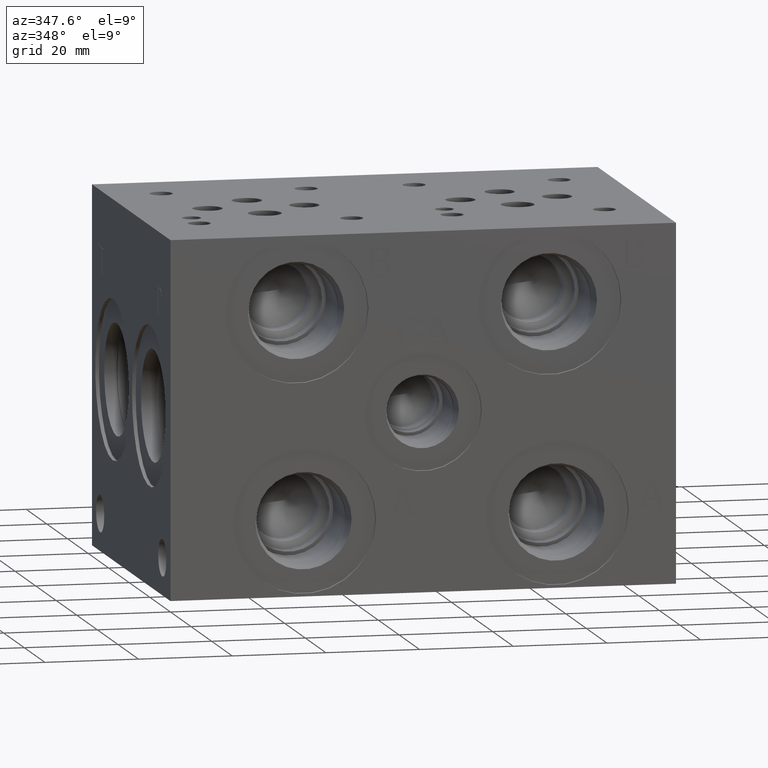
[diagram: clean part render]
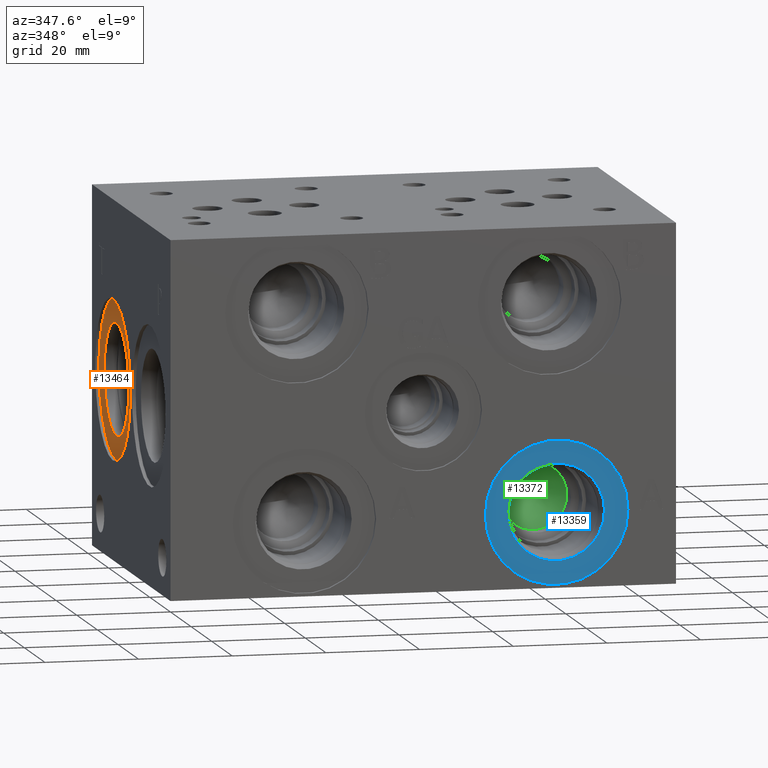
[diagram: same view with three faces highlighted in distinct colors, each labeled with its STEP entity id]
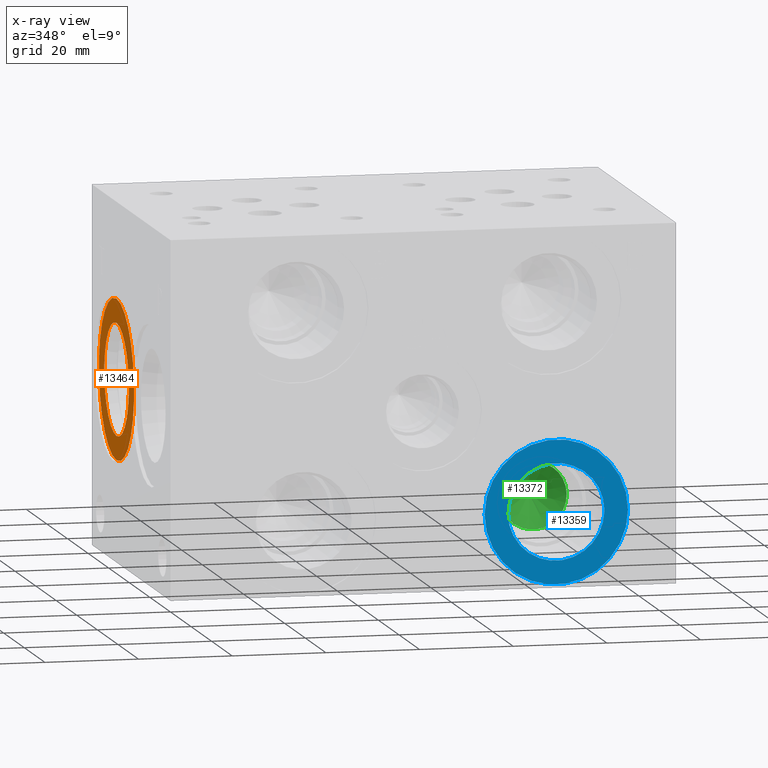
[diagram: x-ray of the same camera — body ghosted, the three highlighted faces saturated]
A machine part, auxiliary view with three faces highlighted in distinct colors.
The next image is the same camera in x-ray (body ghosted, the three faces saturated) — at least one of them is partly hidden behind the body in this view.
Their STEP definitions:

[orange] entity #13464 — the highlighted planar face has unit normal (1, 0, 0).
#481=CIRCLE('',#14304,17.0688);
#482=CIRCLE('',#14305,17.0688);
#483=CIRCLE('',#14307,11.9507);
#484=CIRCLE('',#14308,11.9507);
#580=FACE_BOUND('',#2638,.T.);
#1848=FACE_OUTER_BOUND('',#2637,.T.);
#2637=EDGE_LOOP('',(#11834,#11835));
#2638=EDGE_LOOP('',(#11836,#11837));
#6297=VERTEX_POINT('',#23428);
#6298=VERTEX_POINT('',#23430);
#6299=VERTEX_POINT('',#23434);
#6300=VERTEX_POINT('',#23435);
#8167=EDGE_CURVE('',#6297,#6298,#481,.T.);
#8168=EDGE_CURVE('',#6298,#6297,#482,.T.);
#8169=EDGE_CURVE('',#6299,#6300,#483,.T.);
#8170=EDGE_CURVE('',#6300,#6299,#484,.T.);
#11834=ORIENTED_EDGE('',*,*,#8168,.F.);
#11835=ORIENTED_EDGE('',*,*,#8167,.F.);
#11836=ORIENTED_EDGE('',*,*,#8169,.T.);
#11837=ORIENTED_EDGE('',*,*,#8170,.T.);
#12276=PLANE('',#14306);
#13464=ADVANCED_FACE('',(#1848,#580),#12276,.F.);
#14304=AXIS2_PLACEMENT_3D('',#23431,#17129,#17130);
#14305=AXIS2_PLACEMENT_3D('',#23432,#17131,#17132);
#14306=AXIS2_PLACEMENT_3D('',#23433,#17133,#17134);
#14307=AXIS2_PLACEMENT_3D('',#23436,#17135,#17136);
#14308=AXIS2_PLACEMENT_3D('',#23437,#17137,#17138);
#17129=DIRECTION('center_axis',(1.,0.,0.));
#17130=DIRECTION('ref_axis',(0.,0.,-1.));
#17131=DIRECTION('center_axis',(1.,0.,0.));
#17132=DIRECTION('ref_axis',(0.,0.,-1.));
#17133=DIRECTION('center_axis',(1.,0.,0.));
#17134=DIRECTION('ref_axis',(0.,0.,-1.));
#17135=DIRECTION('center_axis',(1.,0.,0.));
#17136=DIRECTION('ref_axis',(0.,0.,-1.));
#17137=DIRECTION('center_axis',(1.,0.,0.));
#17138=DIRECTION('ref_axis',(0.,0.,-1.));
#23428=CARTESIAN_POINT('',(0.7874,55.9562,21.0312));
#23430=CARTESIAN_POINT('',(0.7874,55.9562,55.1688));
#23431=CARTESIAN_POINT('Origin',(0.7874,55.9562,38.1));
#23432=CARTESIAN_POINT('Origin',(0.7874,55.9562,38.1));
#23433=CARTESIAN_POINT('Origin',(0.7874,55.9562,50.0507));
#23434=CARTESIAN_POINT('',(0.7874,55.9562,50.0507));
#23435=CARTESIAN_POINT('',(0.787399999999999,55.9562,26.1493));
#23436=CARTESIAN_POINT('Origin',(0.7874,55.9562,38.1));
#23437=CARTESIAN_POINT('Origin',(0.7874,55.9562,38.1));

[blue] entity #13359 — the highlighted planar face has unit normal (0, 1, 0).
#329=CIRCLE('',#14047,15.3162);
#330=CIRCLE('',#14048,15.3162);
#331=CIRCLE('',#14050,10.2997);
#332=CIRCLE('',#14051,10.2997);
#561=FACE_BOUND('',#2514,.T.);
#1743=FACE_OUTER_BOUND('',#2513,.T.);
#2513=EDGE_LOOP('',(#11338,#11339));
#2514=EDGE_LOOP('',(#11340,#11341));
#6133=VERTEX_POINT('',#22921);
#6134=VERTEX_POINT('',#22923);
#6135=VERTEX_POINT('',#22927);
#6136=VERTEX_POINT('',#22928);
#7929=EDGE_CURVE('',#6133,#6134,#329,.T.);
#7930=EDGE_CURVE('',#6134,#6133,#330,.T.);
#7931=EDGE_CURVE('',#6135,#6136,#331,.T.);
#7932=EDGE_CURVE('',#6136,#6135,#332,.T.);
#11338=ORIENTED_EDGE('',*,*,#7930,.F.);
#11339=ORIENTED_EDGE('',*,*,#7929,.F.);
#11340=ORIENTED_EDGE('',*,*,#7931,.T.);
#11341=ORIENTED_EDGE('',*,*,#7932,.T.);
#12257=PLANE('',#14049);
#13359=ADVANCED_FACE('',(#1743,#561),#12257,.F.);
#14047=AXIS2_PLACEMENT_3D('',#22924,#16529,#16530);
#14048=AXIS2_PLACEMENT_3D('',#22925,#16531,#16532);
#14049=AXIS2_PLACEMENT_3D('',#22926,#16533,#16534);
#14050=AXIS2_PLACEMENT_3D('',#22929,#16535,#16536);
#14051=AXIS2_PLACEMENT_3D('',#22930,#16537,#16538);
#16529=DIRECTION('center_axis',(0.,1.,0.));
#16530=DIRECTION('ref_axis',(1.,0.,0.));
#16531=DIRECTION('center_axis',(0.,1.,0.));
#16532=DIRECTION('ref_axis',(1.,0.,0.));
#16533=DIRECTION('center_axis',(0.,1.,0.));
#16534=DIRECTION('ref_axis',(0.,0.,1.));
#16535=DIRECTION('center_axis',(0.,1.,0.));
#16536=DIRECTION('ref_axis',(1.,0.,0.));
#16537=DIRECTION('center_axis',(0.,1.,0.));
#16538=DIRECTION('ref_axis',(1.,0.,0.));
#22921=CARTESIAN_POINT('',(67.2338,0.7874,15.875));
#22923=CARTESIAN_POINT('',(97.8662,0.7874,15.875));
#22924=CARTESIAN_POINT('Origin',(82.55,0.7874,15.875));
#22925=CARTESIAN_POINT('Origin',(82.55,0.7874,15.875));
#22926=CARTESIAN_POINT('Origin',(92.8497,0.7874,15.875));
#22927=CARTESIAN_POINT('',(92.8497,0.7874,15.875));
#22928=CARTESIAN_POINT('',(72.2503,0.7874,15.875));
#22929=CARTESIAN_POINT('Origin',(82.55,0.7874,15.875));
#22930=CARTESIAN_POINT('Origin',(82.55,0.7874,15.875));

[green] entity #13372 — the highlighted conical surface has half-angle 60 deg.
#45=CONICAL_SURFACE('',#14084,3.57505,1.0471975511966);
#353=CIRCLE('',#14085,7.1501);
#354=CIRCLE('',#14086,7.1501);
#1756=FACE_OUTER_BOUND('',#2528,.T.);
#2528=EDGE_LOOP('',(#11404,#11405,#11406,#11407));
#3764=LINE('',#23001,#4940);
#4940=VECTOR('',#16618,3.57505);
#6159=VERTEX_POINT('',#22997);
#6160=VERTEX_POINT('',#22998);
#6161=VERTEX_POINT('',#23000);
#7964=EDGE_CURVE('',#6159,#6160,#353,.T.);
#7965=EDGE_CURVE('',#6160,#6161,#3764,.T.);
#7966=EDGE_CURVE('',#6160,#6159,#354,.T.);
#11404=ORIENTED_EDGE('',*,*,#7964,.T.);
#11405=ORIENTED_EDGE('',*,*,#7965,.T.);
#11406=ORIENTED_EDGE('',*,*,#7965,.F.);
#11407=ORIENTED_EDGE('',*,*,#7966,.T.);
#13372=ADVANCED_FACE('',(#1756),#45,.F.);
#14084=AXIS2_PLACEMENT_3D('',#22996,#16614,#16615);
#14085=AXIS2_PLACEMENT_3D('',#22999,#16616,#16617);
#14086=AXIS2_PLACEMENT_3D('',#23002,#16619,#16620);
#16614=DIRECTION('center_axis',(0.,-1.,0.));
#16615=DIRECTION('ref_axis',(1.,0.,0.));
#16616=DIRECTION('center_axis',(0.,-1.,0.));
#16617=DIRECTION('ref_axis',(1.,0.,0.));
#16618=DIRECTION('',(0.866025403784439,0.5,1.06057523872491E-16));
#16619=DIRECTION('center_axis',(0.,-1.,0.));
#16620=DIRECTION('ref_axis',(1.,0.,0.));
#22996=CARTESIAN_POINT('Origin',(82.55,25.1829360798664,15.875));
#22997=CARTESIAN_POINT('',(89.7001,23.11888,15.875));
#22998=CARTESIAN_POINT('',(75.3999,23.11888,15.875));
#22999=CARTESIAN_POINT('Origin',(82.55,23.11888,15.875));
#23000=CARTESIAN_POINT('',(82.55,27.2469921597327,15.875));
#23001=CARTESIAN_POINT('',(78.97495,25.1829360798664,15.875));
#23002=CARTESIAN_POINT('Origin',(82.55,23.11888,15.875));